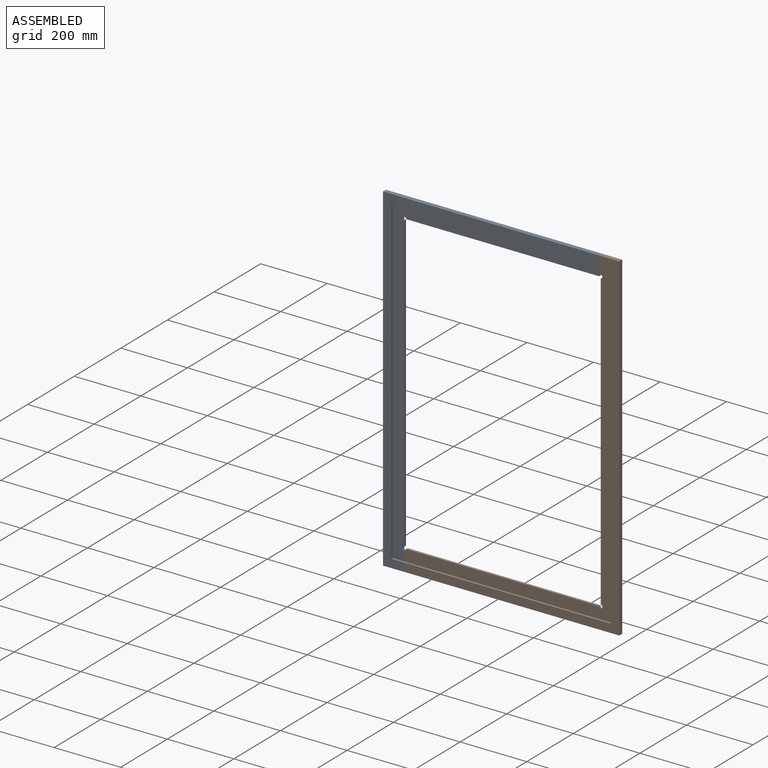
[diagram: assembled view]
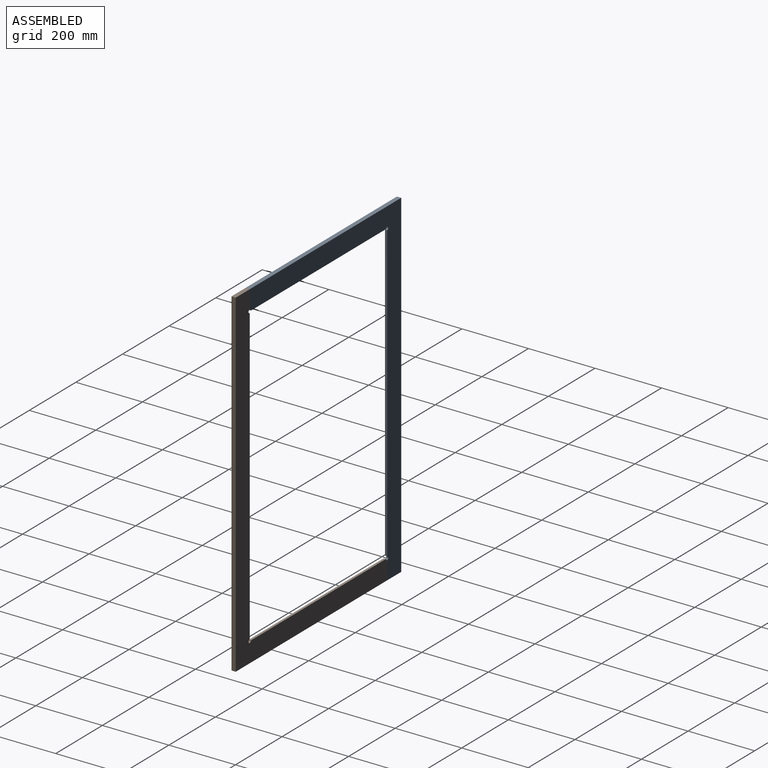
[diagram: assembled view, second angle]
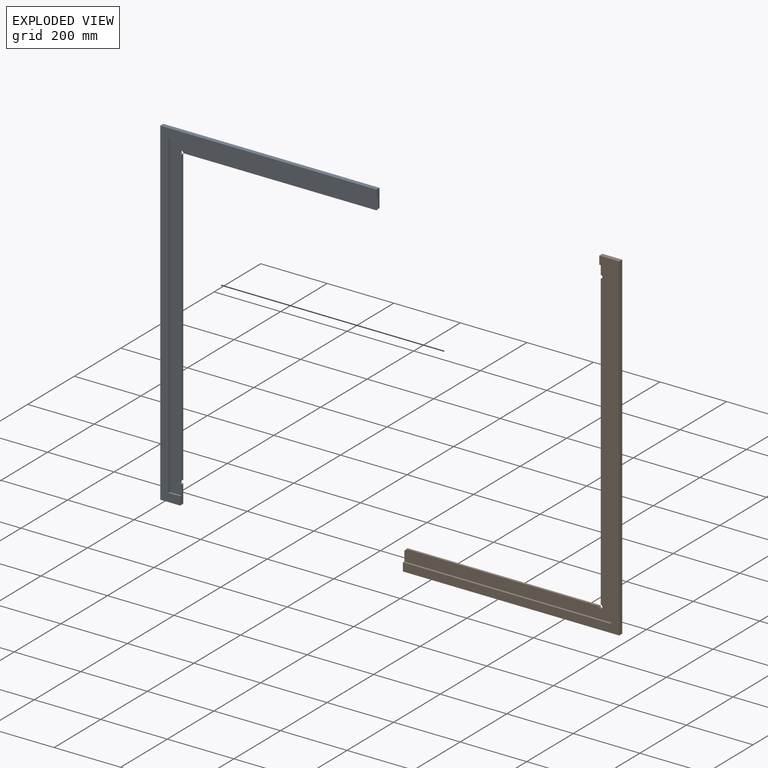
[diagram: exploded view]
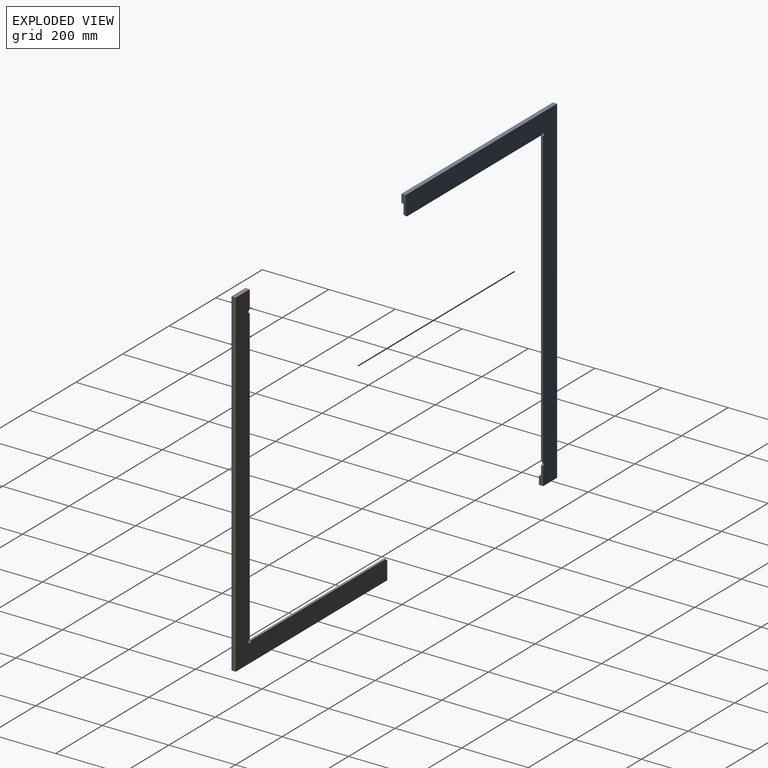
[diagram: exploded view, second angle]
ASSEMBLY  parts=2 mates=3
PART A: 16 faces, bbox 650x13x1016 mm
  f0: plane 60x12.95mm, normal (0,0,-1), area 777.2mm2, adj f4,f7,f8,f15
  f1: plane 650x12.95mm, normal (0,0,1), area 8420.1mm2, adj f4,f7,f8,f14
  f2: plane 35x6.35mm, normal (0,0,1), area 222.3mm2, adj f7,f10,f11,f15
  f3: cylinder r=5.21mm len=10.41mm, axis (0,1,0), area 108mm2, adj f4,f6,f11,f15
  f4: plane 1016x650mm, normal (0,1,0), area 96232.2mm2, adj f0,f1,f3,f5,f6,f8,f12,f13
  f5: plane 579.59x6.6mm, normal (0,0,-1), area 3827.6mm2, adj f4,f11,f12,f13
  f6: plane 885.59x6.6mm, normal (1,0,0), area 5848.4mm2, adj f3,f4,f11,f13
  f7: plane 1016x650mm, normal (0,-1,0), area 41900mm2, adj f0,f1,f2,f8,f9,f10,f14,f15
  f8: plane 1016x12.95mm, normal (-1,0,0), area 13161.3mm2, adj f0,f1,f4,f7
  f9: plane 625x6.35mm, normal (0,0,-1), area 3968.8mm2, adj f7,f10,f11,f14
  f10: plane 966x6.35mm, normal (1,0,0), area 6134.1mm2, adj f2,f7,f9,f11
  f11: plane 966x625mm, normal (0,-1,0), area 54332.2mm2, adj f2,f3,f5,f6,f9,f10,f12,f13
  f12: cylinder r=5.21mm len=6.6mm, axis (0,1,0), area 54mm2, adj f4,f5,f11,f14
  f13: cylinder r=5.21mm len=10.41mm, axis (0,1,0), area 162mm2, adj f4,f5,f6,f11
  f14: plane 54.79x12.95mm, normal (1,0,0), area 520.6mm2, adj f1,f4,f7,f9,f11,f12
  f15: plane 54.79x12.95mm, normal (1,0,0), area 520.6mm2, adj f0,f2,f3,f4,f7,f11
PART B: same geometry as A
PLACE A t=(-766.91,-287.34,-72.5)mm
PLACE B rot(axis=(0,1,0),180deg) t=(-766.91,-287.34,-72.5)mm
MATE planar A.f7 <-> B.f7  axis (0,-1,0) through (-987.59,-300.29,101.93)mm
MATE planar B.f1 <-> A.f0  axis (0,0,-1) through (-736.91,-293.82,-580.5)mm
MATE planar B.f14 <-> A.f15  axis (-1,0,0) through (-1061.91,-300.29,-568)mm
